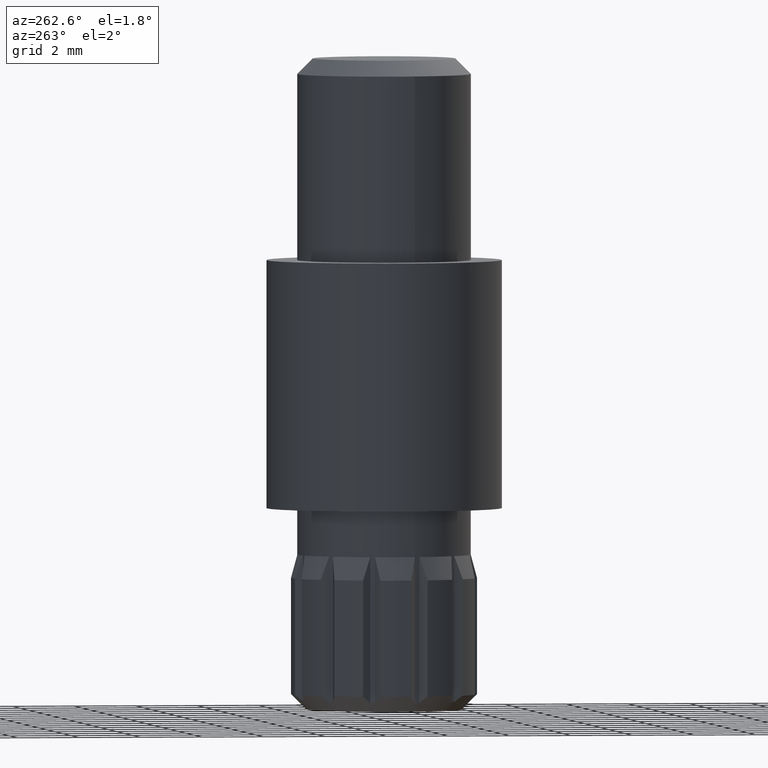
[diagram: clean part render]
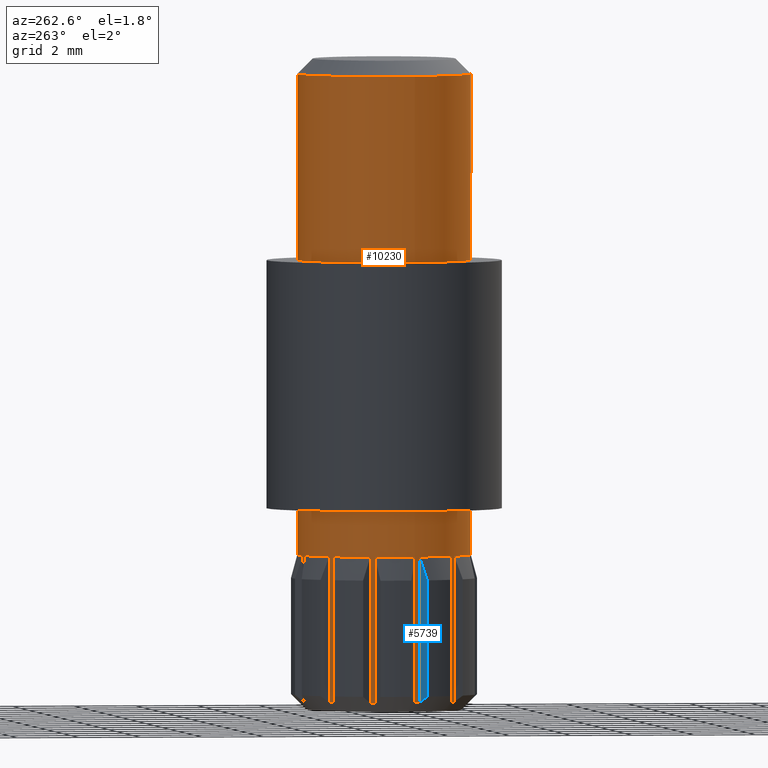
[diagram: same view with the hole feature highlighted: cylindrical wall and planar end face, labeled with their STEP entity ids]
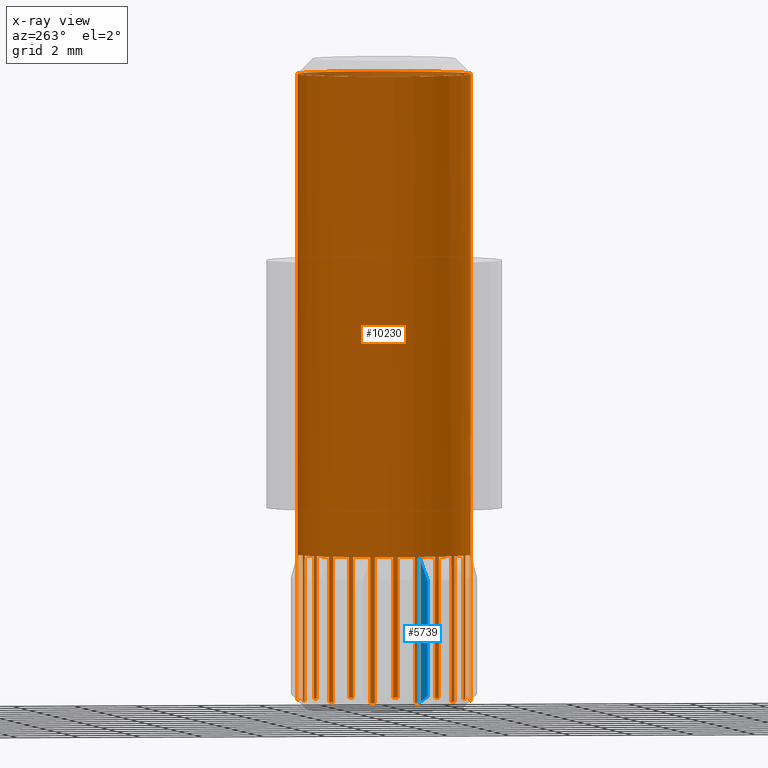
[diagram: x-ray of the same camera — body ghosted, the hole faces saturated]
A machine part, auxiliary view. The highlighted faces form one hole feature of diameter 5.6 mm: the cylindrical wall (entity #10230, orange) and its adjacent planar end face (entity #5739, blue) — they share a circular edge in the B-rep.
The next image is the same camera in x-ray (body ghosted, the hole faces saturated) — the bore reads through the body.
Wall:
#26 = ORIENTED_EDGE ( 'NONE', *, *, #1199, .T. ) ;
#91 = ORIENTED_EDGE ( 'NONE', *, *, #10938, .T. ) ;
#104 = EDGE_CURVE ( 'NONE', #8028, #2983, #6210, .T. ) ;
#190 = VECTOR ( 'NONE', #967, 1000.000000000000000 ) ;
#191 = VERTEX_POINT ( 'NONE', #9255 ) ;
#195 = CARTESIAN_POINT ( 'NONE',  ( -2.683627779027448756, 0.7988378706797785167, 0.2999999999999998224 ) ) ;
#215 = ORIENTED_EDGE ( 'NONE', *, *, #3017, .T. ) ;
#392 = ORIENTED_EDGE ( 'NONE', *, *, #6253, .F. ) ;
#411 = DIRECTION ( 'NONE',  ( 0.000000000000000000, 0.000000000000000000, -1.000000000000000000 ) ) ;
#415 = DIRECTION ( 'NONE',  ( 0.000000000000000000, 0.000000000000000000, 1.000000000000000000 ) ) ;
#446 = CARTESIAN_POINT ( 'NONE',  ( 2.723508766279262527, -0.6500000000000095701, 5.000000000000000000 ) ) ;
#448 = ORIENTED_EDGE ( 'NONE', *, *, #2651, .T. ) ;
#469 = ORIENTED_EDGE ( 'NONE', *, *, #8752, .T. ) ;
#482 = VERTEX_POINT ( 'NONE', #7400 ) ;
#497 = DIRECTION ( 'NONE',  ( 0.000000000000000000, 0.000000000000000000, -1.000000000000000000 ) ) ;
#601 = DIRECTION ( 'NONE',  ( 0.000000000000000000, 0.000000000000000000, -1.000000000000000000 ) ) ;
#621 = CARTESIAN_POINT ( 'NONE',  ( -1.924670895599491116, 2.033627779027482596, 0.2999999999999996003 ) ) ;
#644 = VECTOR ( 'NONE', #10113, 1000.000000000000000 ) ;
#647 = CARTESIAN_POINT ( 'NONE',  ( -0.7988378706797127915, 2.683627779027468296, 5.000000000000000000 ) ) ;
#651 = LINE ( 'NONE', #3552, #5074 ) ;
#653 = VERTEX_POINT ( 'NONE', #195 ) ;
#664 = VECTOR ( 'NONE', #3216, 1000.000000000000000 ) ;
#666 = EDGE_CURVE ( 'NONE', #7502, #6980, #3422, .T. ) ;
#680 = CARTESIAN_POINT ( 'NONE',  ( 1.924670895599505327, -2.033627779027469273, 5.000000000000000000 ) ) ;
#709 = EDGE_CURVE ( 'NONE', #1554, #6554, #1051, .T. ) ;
#714 = DIRECTION ( 'NONE',  ( 0.000000000000000000, 0.000000000000000000, -1.000000000000000000 ) ) ;
#803 = CARTESIAN_POINT ( 'NONE',  ( 2.683627779027454974, -0.7988378706797597539, 5.000000000000000000 ) ) ;
#835 = AXIS2_PLACEMENT_3D ( 'NONE', #2921, #3878, #5708 ) ;
#874 = EDGE_CURVE ( 'NONE', #2983, #9225, #11137, .T. ) ;
#924 = CARTESIAN_POINT ( 'NONE',  ( 0.000000000000000000, 0.000000000000000000, 5.000000000000000000 ) ) ;
#930 = DIRECTION ( 'NONE',  ( 0.000000000000000000, 0.000000000000000000, 1.000000000000000000 ) ) ;
#958 = CARTESIAN_POINT ( 'NONE',  ( -2.723508766279257198, 0.6500000000000284439, 0.2999999999999996003 ) ) ;
#967 = DIRECTION ( 'NONE',  ( 0.000000000000000000, 0.000000000000000000, -1.000000000000000000 ) ) ;
#968 = CARTESIAN_POINT ( 'NONE',  ( -1.924670895599491116, 2.033627779027482596, 5.000000000000000888 ) ) ;
#980 = CARTESIAN_POINT ( 'NONE',  ( 0.000000000000000000, 0.000000000000000000, 0.2999999999999996003 ) ) ;
#999 = EDGE_CURVE ( 'NONE', #482, #2255, #6792, .T. ) ;
#1008 = ORIENTED_EDGE ( 'NONE', *, *, #8844, .T. ) ;
#1051 = LINE ( 'NONE', #7895, #10089 ) ;
#1089 = CYLINDRICAL_SURFACE ( 'NONE', #8489, 2.799999999999999822 ) ;
#1105 = VECTOR ( 'NONE', #5767, 1000.000000000000000 ) ;
#1106 = ORIENTED_EDGE ( 'NONE', *, *, #104, .T. ) ;
#1132 = CARTESIAN_POINT ( 'NONE',  ( -0.6500000000000000222, 2.723508766279264304, 5.000000000000000000 ) ) ;
#1133 = ORIENTED_EDGE ( 'NONE', *, *, #709, .T. ) ;
#1165 = EDGE_CURVE ( 'NONE', #9126, #10343, #8433, .T. ) ;
#1177 = CIRCLE ( 'NONE', #2845, 2.799999999999999822 ) ;
#1192 = VECTOR ( 'NONE', #2712, 1000.000000000000000 ) ;
#1199 = EDGE_CURVE ( 'NONE', #7771, #9194, #10389, .T. ) ;
#1214 = AXIS2_PLACEMENT_3D ( 'NONE', #11802, #3240, #3110 ) ;
#1222 = LINE ( 'NONE', #11818, #11319 ) ;
#1242 = EDGE_CURVE ( 'NONE', #3635, #191, #4577, .T. ) ;
#1261 = EDGE_CURVE ( 'NONE', #1837, #11933, #8128, .T. ) ;
#1329 = CARTESIAN_POINT ( 'NONE',  ( -0.6499999999999999112, 2.723508766279263860, 0.2999999999999996003 ) ) ;
#1341 = CARTESIAN_POINT ( 'NONE',  ( -2.683627779027465632, -0.7988378706797221174, 0.2999999999999996003 ) ) ;
#1421 = CIRCLE ( 'NONE', #3834, 2.800000000000000266 ) ;
#1461 = AXIS2_PLACEMENT_3D ( 'NONE', #4962, #11614, #8838 ) ;
#1490 = CARTESIAN_POINT ( 'NONE',  ( -2.723508766279258086, 0.6500000000000286660, 5.000000000000000000 ) ) ;
#1554 = VERTEX_POINT ( 'NONE', #11642 ) ;
#1667 = CARTESIAN_POINT ( 'NONE',  ( -0.6500000000000000222, -2.723508766279264304, 5.000000000000000000 ) ) ;
#1674 = AXIS2_PLACEMENT_3D ( 'NONE', #5221, #10049, #6172 ) ;
#1709 = LINE ( 'NONE', #4032, #11495 ) ;
#1736 = EDGE_CURVE ( 'NONE', #7503, #9379, #12007, .T. ) ;
#1783 = AXIS2_PLACEMENT_3D ( 'NONE', #980, #10387, #7575 ) ;
#1791 = VERTEX_POINT ( 'NONE', #3794 ) ;
#1806 = DIRECTION ( 'NONE',  ( 0.000000000000000000, 0.000000000000000000, 1.000000000000000000 ) ) ;
#1830 = EDGE_CURVE ( 'NONE', #9379, #3399, #1177, .T. ) ;
#1837 = VERTEX_POINT ( 'NONE', #3715 ) ;
#1894 = EDGE_LOOP ( 'NONE', ( #8974 ) ) ;
#1910 = CARTESIAN_POINT ( 'NONE',  ( -0.7988378706797126805, 2.683627779027468296, 0.2999999999999998224 ) ) ;
#1929 = CARTESIAN_POINT ( 'NONE',  ( 0.000000000000000000, 0.000000000000000000, 0.2999999999999996003 ) ) ;
#1952 = CARTESIAN_POINT ( 'NONE',  ( -1.924670895599534415, -2.033627779027443072, 5.000000000000000000 ) ) ;
#2005 = VERTEX_POINT ( 'NONE', #11991 ) ;
#2083 = CARTESIAN_POINT ( 'NONE',  ( 0.6500000000000000222, -2.723508766279264304, 5.000000000000000888 ) ) ;
#2113 = EDGE_CURVE ( 'NONE', #5700, #3510, #9908, .T. ) ;
#2149 = EDGE_CURVE ( 'NONE', #2688, #3305, #11114, .T. ) ;
#2176 = VERTEX_POINT ( 'NONE', #11278 ) ;
#2189 = AXIS2_PLACEMENT_3D ( 'NONE', #4869, #9567, #3884 ) ;
#2192 = CARTESIAN_POINT ( 'NONE',  ( -0.6500000000000000222, 2.723508766279264304, 5.000000000000000888 ) ) ;
#2202 = CARTESIAN_POINT ( 'NONE',  ( 2.683627779027460747, 0.7988378706797413242, 5.000000000000000000 ) ) ;
#2255 = VERTEX_POINT ( 'NONE', #2192 ) ;
#2261 = ORIENTED_EDGE ( 'NONE', *, *, #9805, .T. ) ;
#2281 = DIRECTION ( 'NONE',  ( 0.000000000000000000, 0.000000000000000000, -1.000000000000000000 ) ) ;
#2283 = ORIENTED_EDGE ( 'NONE', *, *, #7870, .F. ) ;
#2382 = DIRECTION ( 'NONE',  ( 0.000000000000000000, 0.000000000000000000, 1.000000000000000000 ) ) ;
#2430 = LINE ( 'NONE', #12341, #190 ) ;
#2476 = ORIENTED_EDGE ( 'NONE', *, *, #1242, .T. ) ;
#2517 = CARTESIAN_POINT ( 'NONE',  ( -2.723508766279271409, -0.6499999999999714895, 0.2999999999999998779 ) ) ;
#2529 = AXIS2_PLACEMENT_3D ( 'NONE', #9352, #9398, #6513 ) ;
#2559 = ORIENTED_EDGE ( 'NONE', *, *, #2113, .T. ) ;
#2594 = CIRCLE ( 'NONE', #1674, 2.799999999999999822 ) ;
#2651 = EDGE_CURVE ( 'NONE', #8370, #2688, #4113, .T. ) ;
#2660 = CARTESIAN_POINT ( 'NONE',  ( 2.723508766279261639, -0.6500000000000093481, 0.2999999999999996003 ) ) ;
#2688 = VERTEX_POINT ( 'NONE', #2083 ) ;
#2712 = DIRECTION ( 'NONE',  ( 0.000000000000000000, 0.000000000000000000, -1.000000000000000000 ) ) ;
#2739 = ORIENTED_EDGE ( 'NONE', *, *, #3823, .T. ) ;
#2795 = DIRECTION ( 'NONE',  ( 0.000000000000000000, 0.000000000000000000, 1.000000000000000000 ) ) ;
#2820 = DIRECTION ( 'NONE',  ( 0.000000000000000000, 0.000000000000000000, 1.000000000000000000 ) ) ;
#2845 = AXIS2_PLACEMENT_3D ( 'NONE', #2898, #2820, #4774 ) ;
#2886 = EDGE_CURVE ( 'NONE', #10343, #9799, #7050, .T. ) ;
#2895 = CIRCLE ( 'NONE', #2189, 2.799999999999999822 ) ;
#2898 = CARTESIAN_POINT ( 'NONE',  ( 0.000000000000000000, 0.000000000000000000, 0.2999999999999996003 ) ) ;
#2921 = CARTESIAN_POINT ( 'NONE',  ( 0.000000000000000000, 0.000000000000000000, 5.000000000000000000 ) ) ;
#2932 = ORIENTED_EDGE ( 'NONE', *, *, #7676, .T. ) ;
#2946 = CIRCLE ( 'NONE', #4575, 2.799999999999999822 ) ;
#2948 = CARTESIAN_POINT ( 'NONE',  ( 0.000000000000000000, 0.000000000000000000, 5.000000000000000000 ) ) ;
#2983 = VERTEX_POINT ( 'NONE', #968 ) ;
#3004 = EDGE_CURVE ( 'NONE', #12137, #7503, #3813, .T. ) ;
#3017 = EDGE_CURVE ( 'NONE', #653, #6980, #2946, .T. ) ;
#3036 = ORIENTED_EDGE ( 'NONE', *, *, #999, .T. ) ;
#3067 = DIRECTION ( 'NONE',  ( 0.000000000000000000, 0.000000000000000000, 1.000000000000000000 ) ) ;
#3071 = CARTESIAN_POINT ( 'NONE',  ( 2.033627779027449289, -1.924670895599527087, 5.000000000000000000 ) ) ;
#3110 = DIRECTION ( 'NONE',  ( 3.491481338843133750E-15, 1.000000000000000000, 0.000000000000000000 ) ) ;
#3139 = DIRECTION ( 'NONE',  ( 0.000000000000000000, 0.000000000000000000, -1.000000000000000000 ) ) ;
#3191 = ORIENTED_EDGE ( 'NONE', *, *, #7028, .T. ) ;
#3216 = DIRECTION ( 'NONE',  ( 0.000000000000000000, 0.000000000000000000, -1.000000000000000000 ) ) ;
#3227 = LINE ( 'NONE', #647, #4527 ) ;
#3240 = DIRECTION ( 'NONE',  ( 0.000000000000000000, 0.000000000000000000, 1.000000000000000000 ) ) ;
#3305 = VERTEX_POINT ( 'NONE', #8425 ) ;
#3399 = VERTEX_POINT ( 'NONE', #7586 ) ;
#3422 = LINE ( 'NONE', #5950, #12191 ) ;
#3428 = ORIENTED_EDGE ( 'NONE', *, *, #7817, .F. ) ;
#3460 = CIRCLE ( 'NONE', #835, 2.800000000000000266 ) ;
#3496 = VECTOR ( 'NONE', #8652, 1000.000000000000000 ) ;
#3510 = VERTEX_POINT ( 'NONE', #7918 ) ;
#3544 = CARTESIAN_POINT ( 'NONE',  ( 0.000000000000000000, 0.000000000000000000, 20.50000000000000355 ) ) ;
#3552 = CARTESIAN_POINT ( 'NONE',  ( -0.7988378706797689688, -2.683627779027451865, 5.000000000000000000 ) ) ;
#3579 = CARTESIAN_POINT ( 'NONE',  ( 0.7988378706797313322, -2.683627779027462523, 0.2999999999999996003 ) ) ;
#3635 = VERTEX_POINT ( 'NONE', #9704 ) ;
#3652 = ORIENTED_EDGE ( 'NONE', *, *, #11549, .T. ) ;
#3659 = DIRECTION ( 'NONE',  ( 0.000000000000000000, 0.000000000000000000, 1.000000000000000000 ) ) ;
#3689 = CARTESIAN_POINT ( 'NONE',  ( 0.6500000000000000222, -2.723508766279264304, 5.000000000000000000 ) ) ;
#3715 = CARTESIAN_POINT ( 'NONE',  ( 1.924670895599520426, 2.033627779027456395, 5.000000000000000000 ) ) ;
#3729 = CARTESIAN_POINT ( 'NONE',  ( 1.924670895599519538, 2.033627779027455507, 0.2999999999999996003 ) ) ;
#3775 = VERTEX_POINT ( 'NONE', #3579 ) ;
#3794 = CARTESIAN_POINT ( 'NONE',  ( 0.6499999999999999112, 2.723508766279263860, 0.2999999999999996003 ) ) ;
#3802 = CIRCLE ( 'NONE', #7821, 2.799999999999999822 ) ;
#3813 = CIRCLE ( 'NONE', #5912, 2.800000000000000711 ) ;
#3823 = EDGE_CURVE ( 'NONE', #2005, #11933, #3802, .T. ) ;
#3834 = AXIS2_PLACEMENT_3D ( 'NONE', #924, #2795, #7640 ) ;
#3851 = VERTEX_POINT ( 'NONE', #1329 ) ;
#3878 = DIRECTION ( 'NONE',  ( 0.000000000000000000, 0.000000000000000000, 1.000000000000000000 ) ) ;
#3884 = DIRECTION ( 'NONE',  ( 1.000000000000000000, 0.000000000000000000, 0.000000000000000000 ) ) ;
#4032 = CARTESIAN_POINT ( 'NONE',  ( 0.6500000000000000222, 2.723508766279264304, 5.000000000000000000 ) ) ;
#4067 = CARTESIAN_POINT ( 'NONE',  ( 0.000000000000000000, 0.000000000000000000, 0.2999999999999996003 ) ) ;
#4094 = CARTESIAN_POINT ( 'NONE',  ( 2.723508766279262083, -0.6500000000000094591, 5.000000000000000000 ) ) ;
#4113 = CIRCLE ( 'NONE', #4492, 2.800000000000000266 ) ;
#4119 = CARTESIAN_POINT ( 'NONE',  ( -2.683627779027466076, -0.7988378706797225615, 5.000000000000000000 ) ) ;
#4191 = ORIENTED_EDGE ( 'NONE', *, *, #9026, .F. ) ;
#4200 = ORIENTED_EDGE ( 'NONE', *, *, #1261, .F. ) ;
#4248 = CIRCLE ( 'NONE', #9287, 2.799999999999999822 ) ;
#4278 = VERTEX_POINT ( 'NONE', #1910 ) ;
#4289 = VERTEX_POINT ( 'NONE', #5609 ) ;
#4317 = ORIENTED_EDGE ( 'NONE', *, *, #9267, .T. ) ;
#4326 = ORIENTED_EDGE ( 'NONE', *, *, #6471, .F. ) ;
#4332 = ORIENTED_EDGE ( 'NONE', *, *, #9237, .F. ) ;
#4342 = CARTESIAN_POINT ( 'NONE',  ( -0.6500000000000001332, -2.723508766279265192, 5.000000000000000000 ) ) ;
#4355 = DIRECTION ( 'NONE',  ( 1.000000000000000000, 0.000000000000000000, 0.000000000000000000 ) ) ;
#4359 = DIRECTION ( 'NONE',  ( -0.8660254037844449249, -0.4999999999999889533, 0.000000000000000000 ) ) ;
#4387 = DIRECTION ( 'NONE',  ( 0.000000000000000000, 0.000000000000000000, -1.000000000000000000 ) ) ;
#4398 = EDGE_CURVE ( 'NONE', #6706, #6572, #6505, .T. ) ;
#4492 = AXIS2_PLACEMENT_3D ( 'NONE', #11450, #8667, #11606 ) ;
#4495 = ORIENTED_EDGE ( 'NONE', *, *, #1830, .T. ) ;
#4527 = VECTOR ( 'NONE', #601, 1000.000000000000000 ) ;
#4572 = DIRECTION ( 'NONE',  ( 0.000000000000000000, 0.000000000000000000, -1.000000000000000000 ) ) ;
#4575 = AXIS2_PLACEMENT_3D ( 'NONE', #12298, #6570, #12343 ) ;
#4577 = CIRCLE ( 'NONE', #9313, 2.799999999999999822 ) ;
#4597 = ORIENTED_EDGE ( 'NONE', *, *, #11697, .T. ) ;
#4640 = EDGE_CURVE ( 'NONE', #3305, #3775, #8270, .T. ) ;
#4672 = EDGE_CURVE ( 'NONE', #2176, #8784, #4248, .T. ) ;
#4747 = ORIENTED_EDGE ( 'NONE', *, *, #4672, .T. ) ;
#4774 = DIRECTION ( 'NONE',  ( 1.000000000000000000, 0.000000000000000000, 0.000000000000000000 ) ) ;
#4825 = CARTESIAN_POINT ( 'NONE',  ( 2.683627779027459859, 0.7988378706797408801, 0.2999999999999996003 ) ) ;
#4869 = CARTESIAN_POINT ( 'NONE',  ( 0.000000000000000000, 0.000000000000000000, 0.2999999999999996003 ) ) ;
#4887 = VERTEX_POINT ( 'NONE', #6322 ) ;
#4935 = CARTESIAN_POINT ( 'NONE',  ( 0.000000000000000000, 0.000000000000000000, 5.000000000000000000 ) ) ;
#4954 = DIRECTION ( 'NONE',  ( 0.000000000000000000, 0.000000000000000000, -1.000000000000000000 ) ) ;
#4962 = CARTESIAN_POINT ( 'NONE',  ( 0.000000000000000000, 0.000000000000000000, 5.000000000000000000 ) ) ;
#4989 = ORIENTED_EDGE ( 'NONE', *, *, #3004, .T. ) ;
#5015 = VECTOR ( 'NONE', #11084, 1000.000000000000000 ) ;
#5050 = DIRECTION ( 'NONE',  ( 0.000000000000000000, 0.000000000000000000, 1.000000000000000000 ) ) ;
#5066 = LINE ( 'NONE', #11801, #9067 ) ;
#5068 = AXIS2_PLACEMENT_3D ( 'NONE', #7243, #3659, #6450 ) ;
#5074 = VECTOR ( 'NONE', #10309, 1000.000000000000000 ) ;
#5214 = VERTEX_POINT ( 'NONE', #9861 ) ;
#5221 = CARTESIAN_POINT ( 'NONE',  ( 0.000000000000000000, 0.000000000000000000, 0.2999999999999996003 ) ) ;
#5369 = CARTESIAN_POINT ( 'NONE',  ( -2.033627779027475935, -1.924670895599498222, 5.000000000000000888 ) ) ;
#5370 = AXIS2_PLACEMENT_3D ( 'NONE', #6523, #930, #10286 ) ;
#5390 = LINE ( 'NONE', #1132, #7314 ) ;
#5421 = LINE ( 'NONE', #1667, #6020 ) ;
#5474 = VECTOR ( 'NONE', #9426, 1000.000000000000000 ) ;
#5568 = CIRCLE ( 'NONE', #6838, 2.799999999999999822 ) ;
#5609 = CARTESIAN_POINT ( 'NONE',  ( 2.723508766279266524, 0.6499999999999904743, 0.2999999999999997113 ) ) ;
#5636 = DIRECTION ( 'NONE',  ( 0.000000000000000000, 0.000000000000000000, 1.000000000000000000 ) ) ;
#5654 = CIRCLE ( 'NONE', #5068, 2.800000000000000711 ) ;
#5661 = DIRECTION ( 'NONE',  ( -0.5000000000000101030, -0.8660254037844328234, 0.000000000000000000 ) ) ;
#5700 = VERTEX_POINT ( 'NONE', #8020 ) ;
#5708 = DIRECTION ( 'NONE',  ( 0.8660254037844415942, 0.4999999999999950040, 0.000000000000000000 ) ) ;
#5767 = DIRECTION ( 'NONE',  ( 0.000000000000000000, 0.000000000000000000, -1.000000000000000000 ) ) ;
#5817 = ORIENTED_EDGE ( 'NONE', *, *, #11508, .T. ) ;
#5853 = ORIENTED_EDGE ( 'NONE', *, *, #1165, .T. ) ;
#5912 = AXIS2_PLACEMENT_3D ( 'NONE', #2948, #10520, #11473 ) ;
#5914 = VECTOR ( 'NONE', #3139, 1000.000000000000000 ) ;
#5950 = CARTESIAN_POINT ( 'NONE',  ( -2.723508766279257198, 0.6500000000000284439, 5.000000000000000000 ) ) ;
#5964 = ORIENTED_EDGE ( 'NONE', *, *, #2886, .T. ) ;
#6015 = ORIENTED_EDGE ( 'NONE', *, *, #874, .T. ) ;
#6020 = VECTOR ( 'NONE', #7235, 1000.000000000000000 ) ;
#6035 = ORIENTED_EDGE ( 'NONE', *, *, #1736, .T. ) ;
#6075 = CARTESIAN_POINT ( 'NONE',  ( -2.033627779027435523, 1.924670895599541076, 5.000000000000000000 ) ) ;
#6078 = CARTESIAN_POINT ( 'NONE',  ( 0.000000000000000000, 0.000000000000000000, 5.000000000000000000 ) ) ;
#6124 = CARTESIAN_POINT ( 'NONE',  ( -2.723508766279270965, -0.6499999999999713785, 5.000000000000000888 ) ) ;
#6126 = CARTESIAN_POINT ( 'NONE',  ( 0.000000000000000000, 0.000000000000000000, 0.2999999999999996003 ) ) ;
#6138 = ORIENTED_EDGE ( 'NONE', *, *, #9783, .T. ) ;
#6172 = DIRECTION ( 'NONE',  ( 1.000000000000000000, 0.000000000000000000, 0.000000000000000000 ) ) ;
#6210 = CIRCLE ( 'NONE', #12302, 2.800000000000000266 ) ;
#6253 = EDGE_CURVE ( 'NONE', #8028, #4278, #3227, .T. ) ;
#6270 = LINE ( 'NONE', #12326, #664 ) ;
#6322 = CARTESIAN_POINT ( 'NONE',  ( 2.723508766279266524, 0.6499999999999904743, 5.000000000000000888 ) ) ;
#6383 = EDGE_CURVE ( 'NONE', #3635, #5214, #11979, .T. ) ;
#6450 = DIRECTION ( 'NONE',  ( 0.8660254037844344888, -0.5000000000000071054, 0.000000000000000000 ) ) ;
#6471 = EDGE_CURVE ( 'NONE', #8370, #8784, #5421, .T. ) ;
#6479 = ORIENTED_EDGE ( 'NONE', *, *, #8955, .T. ) ;
#6487 = DIRECTION ( 'NONE',  ( 0.000000000000000000, 0.000000000000000000, 1.000000000000000000 ) ) ;
#6505 = LINE ( 'NONE', #11632, #5914 ) ;
#6513 = DIRECTION ( 'NONE',  ( 1.000000000000000000, 0.000000000000000000, 0.000000000000000000 ) ) ;
#6523 = CARTESIAN_POINT ( 'NONE',  ( 0.000000000000000000, 0.000000000000000000, 5.000000000000000000 ) ) ;
#6544 = DIRECTION ( 'NONE',  ( 1.000000000000000000, 0.000000000000000000, 0.000000000000000000 ) ) ;
#6547 = FACE_OUTER_BOUND ( 'NONE', #1894, .T. ) ;
#6552 = CIRCLE ( 'NONE', #5370, 2.800000000000000266 ) ;
#6554 = VERTEX_POINT ( 'NONE', #10451 ) ;
#6565 = CIRCLE ( 'NONE', #7212, 2.799999999999999822 ) ;
#6570 = DIRECTION ( 'NONE',  ( 0.000000000000000000, 0.000000000000000000, 1.000000000000000000 ) ) ;
#6572 = VERTEX_POINT ( 'NONE', #4825 ) ;
#6612 = VERTEX_POINT ( 'NONE', #7766 ) ;
#6706 = VERTEX_POINT ( 'NONE', #2202 ) ;
#6792 = CIRCLE ( 'NONE', #1461, 2.800000000000000266 ) ;
#6838 = AXIS2_PLACEMENT_3D ( 'NONE', #4067, #9582, #8812 ) ;
#6897 = VECTOR ( 'NONE', #411, 1000.000000000000000 ) ;
#6907 = DIRECTION ( 'NONE',  ( 1.000000000000000000, 0.000000000000000000, 0.000000000000000000 ) ) ;
#6980 = VERTEX_POINT ( 'NONE', #958 ) ;
#7028 = EDGE_CURVE ( 'NONE', #6554, #1791, #5568, .T. ) ;
#7034 = AXIS2_PLACEMENT_3D ( 'NONE', #9524, #9557, #10524 ) ;
#7050 = CIRCLE ( 'NONE', #2529, 2.799999999999999822 ) ;
#7137 = CIRCLE ( 'NONE', #1214, 2.800000000000000266 ) ;
#7187 = ORIENTED_EDGE ( 'NONE', *, *, #9100, .F. ) ;
#7191 = VERTEX_POINT ( 'NONE', #1952 ) ;
#7212 = AXIS2_PLACEMENT_3D ( 'NONE', #6126, #5050, #6907 ) ;
#7235 = DIRECTION ( 'NONE',  ( 0.000000000000000000, 0.000000000000000000, -1.000000000000000000 ) ) ;
#7239 = VECTOR ( 'NONE', #4387, 1000.000000000000000 ) ;
#7243 = CARTESIAN_POINT ( 'NONE',  ( 0.000000000000000000, 0.000000000000000000, 5.000000000000000000 ) ) ;
#7314 = VECTOR ( 'NONE', #4954, 1000.000000000000000 ) ;
#7359 = CARTESIAN_POINT ( 'NONE',  ( -2.033627779027476379, -1.924670895599498444, 5.000000000000000000 ) ) ;
#7400 = CARTESIAN_POINT ( 'NONE',  ( 0.6500000000000001332, 2.723508766279265192, 5.000000000000000000 ) ) ;
#7439 = DIRECTION ( 'NONE',  ( 0.000000000000000000, 0.000000000000000000, -1.000000000000000000 ) ) ;
#7486 = VERTEX_POINT ( 'NONE', #446 ) ;
#7502 = VERTEX_POINT ( 'NONE', #1490 ) ;
#7503 = VERTEX_POINT ( 'NONE', #5369 ) ;
#7525 = ORIENTED_EDGE ( 'NONE', *, *, #9324, .T. ) ;
#7560 = VERTEX_POINT ( 'NONE', #2660 ) ;
#7575 = DIRECTION ( 'NONE',  ( 1.000000000000000000, 0.000000000000000000, 0.000000000000000000 ) ) ;
#7586 = CARTESIAN_POINT ( 'NONE',  ( -1.924670895599533749, -2.033627779027442628, 0.2999999999999996003 ) ) ;
#7640 = DIRECTION ( 'NONE',  ( -0.4999999999999980016, 0.8660254037844399289, 0.000000000000000000 ) ) ;
#7676 = EDGE_CURVE ( 'NONE', #6706, #9886, #1421, .T. ) ;
#7680 = CARTESIAN_POINT ( 'NONE',  ( 2.723508766279266524, 0.6499999999999904743, 5.000000000000000000 ) ) ;
#7766 = CARTESIAN_POINT ( 'NONE',  ( 0.7988378706797321094, -2.683627779027463855, 5.000000000000000000 ) ) ;
#7771 = VERTEX_POINT ( 'NONE', #9592 ) ;
#7817 = EDGE_CURVE ( 'NONE', #482, #1791, #1709, .T. ) ;
#7821 = AXIS2_PLACEMENT_3D ( 'NONE', #1929, #1806, #11289 ) ;
#7870 = EDGE_CURVE ( 'NONE', #9987, #8383, #11359, .T. ) ;
#7880 = DIRECTION ( 'NONE',  ( -1.000000000000000000, 0.000000000000000000, 0.000000000000000000 ) ) ;
#7895 = CARTESIAN_POINT ( 'NONE',  ( 0.7988378706797502060, 2.683627779027457194, 5.000000000000000000 ) ) ;
#7918 = CARTESIAN_POINT ( 'NONE',  ( 2.683627779027454974, -0.7988378706797596429, 0.3000000000000002665 ) ) ;
#7987 = CARTESIAN_POINT ( 'NONE',  ( 1.924670895599505327, -2.033627779027469273, 0.2999999999999997669 ) ) ;
#8011 = AXIS2_PLACEMENT_3D ( 'NONE', #8340, #5636, #10218 ) ;
#8017 = ORIENTED_EDGE ( 'NONE', *, *, #6383, .F. ) ;
#8020 = CARTESIAN_POINT ( 'NONE',  ( 2.683627779027454086, -0.7988378706797595319, 5.000000000000000888 ) ) ;
#8028 = VERTEX_POINT ( 'NONE', #9249 ) ;
#8053 = EDGE_CURVE ( 'NONE', #9374, #9374, #11066, .T. ) ;
#8116 = AXIS2_PLACEMENT_3D ( 'NONE', #3544, #12092, #4355 ) ;
#8128 = LINE ( 'NONE', #12348, #1192 ) ;
#8270 = CIRCLE ( 'NONE', #8011, 2.799999999999999822 ) ;
#8340 = CARTESIAN_POINT ( 'NONE',  ( 0.000000000000000000, 0.000000000000000000, 0.2999999999999996003 ) ) ;
#8356 = LINE ( 'NONE', #7680, #1105 ) ;
#8370 = VERTEX_POINT ( 'NONE', #4342 ) ;
#8383 = VERTEX_POINT ( 'NONE', #11603 ) ;
#8425 = CARTESIAN_POINT ( 'NONE',  ( 0.6500000000000000222, -2.723508766279264304, 0.2999999999999998779 ) ) ;
#8433 = LINE ( 'NONE', #12085, #7239 ) ;
#8457 = CARTESIAN_POINT ( 'NONE',  ( -1.924670895599491116, 2.033627779027482596, 5.000000000000000000 ) ) ;
#8485 = ORIENTED_EDGE ( 'NONE', *, *, #9584, .T. ) ;
#8489 = AXIS2_PLACEMENT_3D ( 'NONE', #11836, #10814, #7880 ) ;
#8652 = DIRECTION ( 'NONE',  ( 0.000000000000000000, 0.000000000000000000, -1.000000000000000000 ) ) ;
#8667 = DIRECTION ( 'NONE',  ( 0.000000000000000000, 0.000000000000000000, 1.000000000000000000 ) ) ;
#8752 = EDGE_CURVE ( 'NONE', #4289, #6572, #2594, .T. ) ;
#8765 = ORIENTED_EDGE ( 'NONE', *, *, #4640, .T. ) ;
#8784 = VERTEX_POINT ( 'NONE', #11093 ) ;
#8812 = DIRECTION ( 'NONE',  ( 1.000000000000000000, 0.000000000000000000, 0.000000000000000000 ) ) ;
#8838 = DIRECTION ( 'NONE',  ( -1.000000000000000000, 0.000000000000000000, 0.000000000000000000 ) ) ;
#8844 = EDGE_CURVE ( 'NONE', #3510, #7560, #11346, .T. ) ;
#8874 = EDGE_CURVE ( 'NONE', #2255, #3851, #5390, .T. ) ;
#8878 = DIRECTION ( 'NONE',  ( 0.000000000000000000, 0.000000000000000000, -1.000000000000000000 ) ) ;
#8955 = EDGE_CURVE ( 'NONE', #9225, #5214, #2895, .T. ) ;
#8974 = ORIENTED_EDGE ( 'NONE', *, *, #8053, .T. ) ;
#8990 = AXIS2_PLACEMENT_3D ( 'NONE', #4935, #3067, #9674 ) ;
#8995 = DIRECTION ( 'NONE',  ( 0.5000000000000039968, 0.8660254037844363761, 0.000000000000000000 ) ) ;
#9026 = EDGE_CURVE ( 'NONE', #7191, #3399, #6270, .T. ) ;
#9067 = VECTOR ( 'NONE', #2281, 1000.000000000000000 ) ;
#9090 = ORIENTED_EDGE ( 'NONE', *, *, #12237, .T. ) ;
#9100 = EDGE_CURVE ( 'NONE', #7486, #7560, #11769, .T. ) ;
#9126 = VERTEX_POINT ( 'NONE', #6124 ) ;
#9194 = VERTEX_POINT ( 'NONE', #7987 ) ;
#9198 = CARTESIAN_POINT ( 'NONE',  ( 0.7988378706797314432, -2.683627779027462967, 5.000000000000000000 ) ) ;
#9225 = VERTEX_POINT ( 'NONE', #621 ) ;
#9237 = EDGE_CURVE ( 'NONE', #12137, #9799, #2430, .T. ) ;
#9249 = CARTESIAN_POINT ( 'NONE',  ( -0.7988378706797133466, 2.683627779027469185, 5.000000000000000000 ) ) ;
#9252 = VECTOR ( 'NONE', #8878, 1000.000000000000000 ) ;
#9255 = CARTESIAN_POINT ( 'NONE',  ( -2.683627779027448756, 0.7988378706797785167, 5.000000000000000888 ) ) ;
#9267 = EDGE_CURVE ( 'NONE', #4887, #4289, #8356, .T. ) ;
#9280 = CARTESIAN_POINT ( 'NONE',  ( 0.000000000000000000, 0.000000000000000000, 5.000000000000000000 ) ) ;
#9287 = AXIS2_PLACEMENT_3D ( 'NONE', #12282, #10352, #6544 ) ;
#9292 = AXIS2_PLACEMENT_3D ( 'NONE', #6078, #415, #8995 ) ;
#9313 = AXIS2_PLACEMENT_3D ( 'NONE', #9280, #6487, #5661 ) ;
#9318 = VECTOR ( 'NONE', #714, 1000.000000000000000 ) ;
#9324 = EDGE_CURVE ( 'NONE', #1837, #1554, #10443, .T. ) ;
#9352 = CARTESIAN_POINT ( 'NONE',  ( 0.000000000000000000, 0.000000000000000000, 0.2999999999999996003 ) ) ;
#9374 = VERTEX_POINT ( 'NONE', #10537 ) ;
#9379 = VERTEX_POINT ( 'NONE', #10851 ) ;
#9398 = DIRECTION ( 'NONE',  ( 0.000000000000000000, 0.000000000000000000, 1.000000000000000000 ) ) ;
#9426 = DIRECTION ( 'NONE',  ( 0.000000000000000000, 0.000000000000000000, -1.000000000000000000 ) ) ;
#9524 = CARTESIAN_POINT ( 'NONE',  ( 0.000000000000000000, 0.000000000000000000, 0.2999999999999996003 ) ) ;
#9557 = DIRECTION ( 'NONE',  ( 0.000000000000000000, 0.000000000000000000, 1.000000000000000000 ) ) ;
#9567 = DIRECTION ( 'NONE',  ( 0.000000000000000000, 0.000000000000000000, 1.000000000000000000 ) ) ;
#9582 = DIRECTION ( 'NONE',  ( 0.000000000000000000, 0.000000000000000000, 1.000000000000000000 ) ) ;
#9584 = EDGE_CURVE ( 'NONE', #9671, #2176, #651, .T. ) ;
#9592 = CARTESIAN_POINT ( 'NONE',  ( 1.924670895599505327, -2.033627779027469273, 5.000000000000000888 ) ) ;
#9601 = DIRECTION ( 'NONE',  ( 0.000000000000000000, 0.000000000000000000, -1.000000000000000000 ) ) ;
#9657 = CIRCLE ( 'NONE', #7034, 2.799999999999999822 ) ;
#9659 = ORIENTED_EDGE ( 'NONE', *, *, #10792, .T. ) ;
#9671 = VERTEX_POINT ( 'NONE', #11538 ) ;
#9674 = DIRECTION ( 'NONE',  ( -0.8660254037844380415, 0.5000000000000009992, 0.000000000000000000 ) ) ;
#9704 = CARTESIAN_POINT ( 'NONE',  ( -2.033627779027436411, 1.924670895599542186, 5.000000000000000000 ) ) ;
#9783 = EDGE_CURVE ( 'NONE', #9194, #8383, #6565, .T. ) ;
#9799 = VERTEX_POINT ( 'NONE', #1341 ) ;
#9805 = EDGE_CURVE ( 'NONE', #9987, #5700, #10746, .T. ) ;
#9845 = DIRECTION ( 'NONE',  ( 0.000000000000000000, 0.000000000000000000, -1.000000000000000000 ) ) ;
#9861 = CARTESIAN_POINT ( 'NONE',  ( -2.033627779027435523, 1.924670895599541076, 0.2999999999999996003 ) ) ;
#9886 = VERTEX_POINT ( 'NONE', #11957 ) ;
#9908 = LINE ( 'NONE', #803, #9318 ) ;
#9933 = EDGE_LOOP ( 'NONE', ( #4332, #4989, #6035, #4495, #4191, #9659, #8485, #4747, #4326, #448, #10009, #8765, #12159, #91, #26, #6138, #2283, #2261, #2559, #1008, #7187, #11331, #4317, #469, #10679, #2932, #5817, #2739, #4200, #7525, #1133, #3191, #3428, #3036, #11739, #4597, #392, #1106, #6015, #6479, #8017, #2476, #9090, #215, #11020, #3652, #5853, #5964 ) ) ;
#9987 = VERTEX_POINT ( 'NONE', #11164 ) ;
#10009 = ORIENTED_EDGE ( 'NONE', *, *, #2149, .T. ) ;
#10049 = DIRECTION ( 'NONE',  ( 0.000000000000000000, 0.000000000000000000, 1.000000000000000000 ) ) ;
#10089 = VECTOR ( 'NONE', #9845, 1000.000000000000000 ) ;
#10113 = DIRECTION ( 'NONE',  ( 0.000000000000000000, 0.000000000000000000, -1.000000000000000000 ) ) ;
#10215 = VECTOR ( 'NONE', #7439, 1000.000000000000000 ) ;
#10218 = DIRECTION ( 'NONE',  ( 1.000000000000000000, 0.000000000000000000, 0.000000000000000000 ) ) ;
#10224 = VECTOR ( 'NONE', #4572, 1000.000000000000000 ) ;
#10230 = ADVANCED_FACE ( 'NONE', ( #10884, #6547 ), #1089, .T. ) ;
#10286 = DIRECTION ( 'NONE',  ( -1.047444401652940164E-14, -1.000000000000000000, 0.000000000000000000 ) ) ;
#10309 = DIRECTION ( 'NONE',  ( 0.000000000000000000, 0.000000000000000000, -1.000000000000000000 ) ) ;
#10343 = VERTEX_POINT ( 'NONE', #2517 ) ;
#10352 = DIRECTION ( 'NONE',  ( 0.000000000000000000, 0.000000000000000000, 1.000000000000000000 ) ) ;
#10387 = DIRECTION ( 'NONE',  ( 0.000000000000000000, 0.000000000000000000, 1.000000000000000000 ) ) ;
#10389 = LINE ( 'NONE', #680, #5015 ) ;
#10443 = CIRCLE ( 'NONE', #8990, 2.800000000000000711 ) ;
#10451 = CARTESIAN_POINT ( 'NONE',  ( 0.7988378706797500950, 2.683627779027457194, 0.2999999999999997669 ) ) ;
#10520 = DIRECTION ( 'NONE',  ( 0.000000000000000000, 0.000000000000000000, 1.000000000000000000 ) ) ;
#10524 = DIRECTION ( 'NONE',  ( 1.000000000000000000, 0.000000000000000000, 0.000000000000000000 ) ) ;
#10537 = CARTESIAN_POINT ( 'NONE',  ( 2.799999999999999822, 0.000000000000000000, 20.50000000000000355 ) ) ;
#10652 = DIRECTION ( 'NONE',  ( 0.000000000000000000, 0.000000000000000000, -1.000000000000000000 ) ) ;
#10679 = ORIENTED_EDGE ( 'NONE', *, *, #4398, .F. ) ;
#10746 = CIRCLE ( 'NONE', #9292, 2.800000000000000711 ) ;
#10792 = EDGE_CURVE ( 'NONE', #7191, #9671, #5654, .T. ) ;
#10814 = DIRECTION ( 'NONE',  ( -0.000000000000000000, -0.000000000000000000, -1.000000000000000000 ) ) ;
#10851 = CARTESIAN_POINT ( 'NONE',  ( -2.033627779027476379, -1.924670895599498444, 0.2999999999999999334 ) ) ;
#10884 = FACE_OUTER_BOUND ( 'NONE', #9933, .T. ) ;
#10933 = CARTESIAN_POINT ( 'NONE',  ( 0.000000000000000000, 0.000000000000000000, 5.000000000000000000 ) ) ;
#10938 = EDGE_CURVE ( 'NONE', #6612, #7771, #3460, .T. ) ;
#11020 = ORIENTED_EDGE ( 'NONE', *, *, #666, .F. ) ;
#11066 = CIRCLE ( 'NONE', #8116, 2.799999999999999822 ) ;
#11084 = DIRECTION ( 'NONE',  ( 0.000000000000000000, 0.000000000000000000, -1.000000000000000000 ) ) ;
#11093 = CARTESIAN_POINT ( 'NONE',  ( -0.6499999999999999112, -2.723508766279263860, 0.2999999999999996003 ) ) ;
#11114 = LINE ( 'NONE', #3689, #10215 ) ;
#11137 = LINE ( 'NONE', #8457, #5474 ) ;
#11164 = CARTESIAN_POINT ( 'NONE',  ( 2.033627779027449289, -1.924670895599527531, 5.000000000000000000 ) ) ;
#11278 = CARTESIAN_POINT ( 'NONE',  ( -0.7988378706797689688, -2.683627779027451865, 0.3000000000000002109 ) ) ;
#11289 = DIRECTION ( 'NONE',  ( 1.000000000000000000, 0.000000000000000000, 0.000000000000000000 ) ) ;
#11319 = VECTOR ( 'NONE', #497, 1000.000000000000000 ) ;
#11331 = ORIENTED_EDGE ( 'NONE', *, *, #11336, .T. ) ;
#11336 = EDGE_CURVE ( 'NONE', #7486, #4887, #7137, .T. ) ;
#11346 = CIRCLE ( 'NONE', #1783, 2.799999999999999822 ) ;
#11359 = LINE ( 'NONE', #3071, #3496 ) ;
#11450 = CARTESIAN_POINT ( 'NONE',  ( 0.000000000000000000, 0.000000000000000000, 5.000000000000000000 ) ) ;
#11473 = DIRECTION ( 'NONE',  ( 0.4999999999999918954, -0.8660254037844432595, 0.000000000000000000 ) ) ;
#11495 = VECTOR ( 'NONE', #10652, 1000.000000000000000 ) ;
#11508 = EDGE_CURVE ( 'NONE', #9886, #2005, #1222, .T. ) ;
#11538 = CARTESIAN_POINT ( 'NONE',  ( -0.7988378706797688578, -2.683627779027451421, 5.000000000000000888 ) ) ;
#11549 = EDGE_CURVE ( 'NONE', #7502, #9126, #6552, .T. ) ;
#11603 = CARTESIAN_POINT ( 'NONE',  ( 2.033627779027448845, -1.924670895599526865, 0.2999999999999996003 ) ) ;
#11606 = DIRECTION ( 'NONE',  ( 1.000000000000000000, 0.000000000000000000, 0.000000000000000000 ) ) ;
#11614 = DIRECTION ( 'NONE',  ( -0.000000000000000000, -0.000000000000000000, 1.000000000000000000 ) ) ;
#11632 = CARTESIAN_POINT ( 'NONE',  ( 2.683627779027459859, 0.7988378706797408801, 5.000000000000000000 ) ) ;
#11642 = CARTESIAN_POINT ( 'NONE',  ( 0.7988378706797502060, 2.683627779027457194, 5.000000000000000888 ) ) ;
#11697 = EDGE_CURVE ( 'NONE', #3851, #4278, #9657, .T. ) ;
#11739 = ORIENTED_EDGE ( 'NONE', *, *, #8874, .T. ) ;
#11769 = LINE ( 'NONE', #4094, #9252 ) ;
#11801 = CARTESIAN_POINT ( 'NONE',  ( -2.683627779027448756, 0.7988378706797784057, 5.000000000000000000 ) ) ;
#11802 = CARTESIAN_POINT ( 'NONE',  ( 0.000000000000000000, 0.000000000000000000, 5.000000000000000000 ) ) ;
#11818 = CARTESIAN_POINT ( 'NONE',  ( 2.033627779027463056, 1.924670895599512654, 5.000000000000000000 ) ) ;
#11836 = CARTESIAN_POINT ( 'NONE',  ( 0.000000000000000000, 0.000000000000000000, 21.00000000000000000 ) ) ;
#11888 = EDGE_CURVE ( 'NONE', #6612, #3775, #12232, .T. ) ;
#11933 = VERTEX_POINT ( 'NONE', #3729 ) ;
#11957 = CARTESIAN_POINT ( 'NONE',  ( 2.033627779027462612, 1.924670895599512432, 5.000000000000000888 ) ) ;
#11979 = LINE ( 'NONE', #6075, #6897 ) ;
#11991 = CARTESIAN_POINT ( 'NONE',  ( 2.033627779027463056, 1.924670895599512654, 0.2999999999999999334 ) ) ;
#12007 = LINE ( 'NONE', #7359, #10224 ) ;
#12085 = CARTESIAN_POINT ( 'NONE',  ( -2.723508766279271409, -0.6499999999999714895, 5.000000000000000000 ) ) ;
#12092 = DIRECTION ( 'NONE',  ( 0.000000000000000000, 0.000000000000000000, -1.000000000000000000 ) ) ;
#12137 = VERTEX_POINT ( 'NONE', #4119 ) ;
#12159 = ORIENTED_EDGE ( 'NONE', *, *, #11888, .F. ) ;
#12191 = VECTOR ( 'NONE', #9601, 1000.000000000000000 ) ;
#12232 = LINE ( 'NONE', #9198, #644 ) ;
#12237 = EDGE_CURVE ( 'NONE', #191, #653, #5066, .T. ) ;
#12282 = CARTESIAN_POINT ( 'NONE',  ( 0.000000000000000000, 0.000000000000000000, 0.2999999999999996003 ) ) ;
#12298 = CARTESIAN_POINT ( 'NONE',  ( 0.000000000000000000, 0.000000000000000000, 0.2999999999999996003 ) ) ;
#12302 = AXIS2_PLACEMENT_3D ( 'NONE', #10933, #2382, #4359 ) ;
#12326 = CARTESIAN_POINT ( 'NONE',  ( -1.924670895599533971, -2.033627779027443072, 5.000000000000000000 ) ) ;
#12341 = CARTESIAN_POINT ( 'NONE',  ( -2.683627779027465632, -0.7988378706797221174, 5.000000000000000000 ) ) ;
#12343 = DIRECTION ( 'NONE',  ( 1.000000000000000000, 0.000000000000000000, 0.000000000000000000 ) ) ;
#12348 = CARTESIAN_POINT ( 'NONE',  ( 1.924670895599519760, 2.033627779027455951, 5.000000000000000000 ) ) ;
End face:
#13 = ORIENTED_EDGE ( 'NONE', *, *, #9237, .T. ) ;
#64 = DIRECTION ( 'NONE',  ( 0.000000000000000000, 0.000000000000000000, -1.000000000000000000 ) ) ;
#190 = VECTOR ( 'NONE', #967, 1000.000000000000000 ) ;
#208 = CARTESIAN_POINT ( 'NONE',  ( -2.811737691489909707, -1.046007243882658644, 0.4999999999999998890 ) ) ;
#525 = DIRECTION ( 'NONE',  ( -0.8878308257670343151, 0.4601699955644936169, 0.000000000000000000 ) ) ;
#967 = DIRECTION ( 'NONE',  ( 0.000000000000000000, 0.000000000000000000, -1.000000000000000000 ) ) ;
#1341 = CARTESIAN_POINT ( 'NONE',  ( -2.683627779027465632, -0.7988378706797221174, 0.2999999999999996003 ) ) ;
#1901 = EDGE_CURVE ( 'NONE', #12137, #10002, #11186, .T. ) ;
#2430 = LINE ( 'NONE', #12341, #190 ) ;
#2612 = PLANE ( 'NONE',  #11676 ) ;
#3250 = CARTESIAN_POINT ( 'NONE',  ( -2.683627779027466076, -0.7988378706797225615, 5.000000000000000000 ) ) ;
#3973 = CARTESIAN_POINT ( 'NONE',  ( -2.683627779027465632, -0.7988378706797221174, 0.2999999999999996003 ) ) ;
#4119 = CARTESIAN_POINT ( 'NONE',  ( -2.683627779027466076, -0.7988378706797225615, 5.000000000000000000 ) ) ;
#4371 = CARTESIAN_POINT ( 'NONE',  ( -2.683627779027465632, -0.7988378706797221174, 5.000000000000000000 ) ) ;
#4475 = ORIENTED_EDGE ( 'NONE', *, *, #9721, .F. ) ;
#5388 = ORIENTED_EDGE ( 'NONE', *, *, #1901, .F. ) ;
#5739 = ADVANCED_FACE ( 'NONE', ( #8859 ), #2612, .T. ) ;
#5744 = CARTESIAN_POINT ( 'NONE',  ( -2.727623218858805210, -0.8837206488963391671, 4.751060318361801649 ) ) ;
#6508 = VERTEX_POINT ( 'NONE', #8321 ) ;
#6683 = LINE ( 'NONE', #8412, #12229 ) ;
#7869 = EDGE_LOOP ( 'NONE', ( #5388, #13, #4475, #11219 ) ) ;
#8321 = CARTESIAN_POINT ( 'NONE',  ( -2.811737691489909707, -1.046007243882658644, 0.4999999999999998890 ) ) ;
#8328 = CARTESIAN_POINT ( 'NONE',  ( -2.811737691489910596, -1.046007243882659088, 4.250000000000000000 ) ) ;
#8412 = CARTESIAN_POINT ( 'NONE',  ( -2.811737691489909707, -1.046007243882658644, 5.000000000000000000 ) ) ;
#8749 = CARTESIAN_POINT ( 'NONE',  ( -2.726817915829778727, -0.8821669342688205351, 0.3651688080806901882 ) ) ;
#8859 = FACE_OUTER_BOUND ( 'NONE', #7869, .T. ) ;
#9237 = EDGE_CURVE ( 'NONE', #12137, #9799, #2430, .T. ) ;
#9653 = CARTESIAN_POINT ( 'NONE',  ( -2.769488470846289907, -0.9644935406564758562, 0.4319807832766579536 ) ) ;
#9721 = EDGE_CURVE ( 'NONE', #6508, #9799, #11176, .T. ) ;
#9799 = VERTEX_POINT ( 'NONE', #1341 ) ;
#9851 = CARTESIAN_POINT ( 'NONE',  ( -2.811737691489910596, -1.046007243882659088, 4.250000000000000000 ) ) ;
#10002 = VERTEX_POINT ( 'NONE', #8328 ) ;
#10097 = DIRECTION ( 'NONE',  ( -0.4601699955644936169, -0.8878308257670343151, 0.000000000000000000 ) ) ;
#10876 = EDGE_CURVE ( 'NONE', #10002, #6508, #6683, .T. ) ;
#11176 = B_SPLINE_CURVE_WITH_KNOTS ( 'NONE', 3,
 ( #208, #9653, #8749, #3973 ),
 .UNSPECIFIED., .F., .F.,
 ( 4, 4 ),
 ( 2.803256453689943402E-07, 0.0003430701281783228346 ),
 .UNSPECIFIED. ) ;
#11186 = B_SPLINE_CURVE_WITH_KNOTS ( 'NONE', 3,
 ( #3250, #5744, #11734, #9851 ),
 .UNSPECIFIED., .F., .F.,
 ( 4, 4 ),
 ( 2.142295073325126219E-07, 0.0008002172599519530695 ),
 .UNSPECIFIED. ) ;
#11219 = ORIENTED_EDGE ( 'NONE', *, *, #10876, .F. ) ;
#11676 = AXIS2_PLACEMENT_3D ( 'NONE', #4371, #525, #10097 ) ;
#11734 = CARTESIAN_POINT ( 'NONE',  ( -2.770178097237241399, -0.9658240740985748474, 4.500908567543602246 ) ) ;
#12137 = VERTEX_POINT ( 'NONE', #4119 ) ;
#12229 = VECTOR ( 'NONE', #64, 1000.000000000000000 ) ;
#12341 = CARTESIAN_POINT ( 'NONE',  ( -2.683627779027465632, -0.7988378706797221174, 5.000000000000000000 ) ) ;